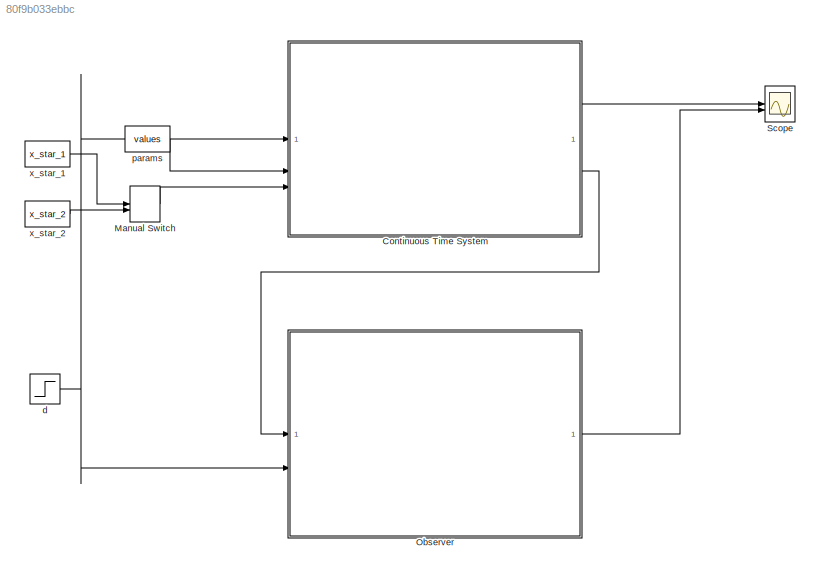
MODEL slx_80f9b033ebbc
KIND model
CONFIG AbsTol = auto
CONFIG EnableMultiTasking = off
CONFIG FixedStep = auto
CONFIG MaxStep = auto
CONFIG MinStep = auto
CONFIG RelTol = 1e-3
CONFIG SampleTimeConstraint = Unconstrained
CONFIG SolverName = VariableStepAuto
CONFIG StartTime = 0.0
CONFIG StopTime = 10.0
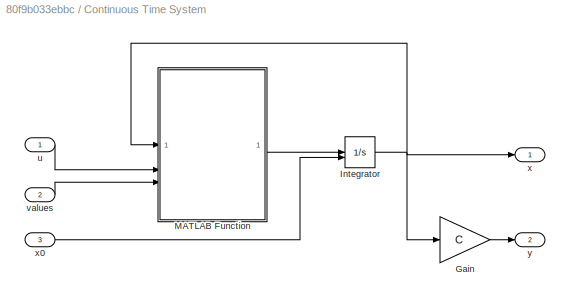
BLOCK [SubSystem] Continuous Time System
BLOCK [Gain] Continuous Time System/Gain
  Gain = C
  Multiplication = Matrix(K*u) (u vector)
BLOCK [Integrator] Continuous Time System/Integrator
  InitialConditionSource = external
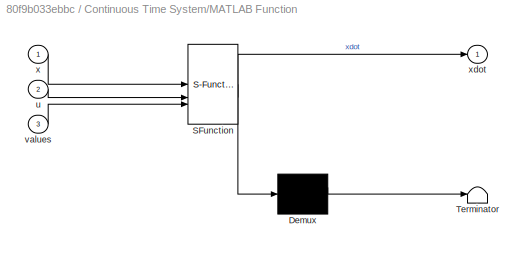
BLOCK [SubSystem] Continuous Time System/MATLAB Function
  ErrorFcn = Stateflow.Translate.translate
  PermitHierarchicalResolution = ExplicitOnly
  SFBlockType = MATLAB Function
  TreatAsAtomicUnit = on
BLOCK [Demux] Continuous Time System/MATLAB Function/ Demux 
  Outputs = 1
BLOCK [S-Function] Continuous Time System/MATLAB Function/ SFunction 
  EnableBusSupport = on
  FunctionName = sf_sfun
  PortCounts = [3 2]
  SFcnIsStateOwnerBlock = off
  SFunctionDeploymentMode = off
  Tag = Stateflow S-Function 2
BLOCK [Terminator] Continuous Time System/MATLAB Function/ Terminator 
BLOCK [Inport] Continuous Time System/MATLAB Function/u
  Port = 2
BLOCK [Inport] Continuous Time System/MATLAB Function/values
  Port = 3
BLOCK [Inport] Continuous Time System/MATLAB Function/x
BLOCK [Outport] Continuous Time System/MATLAB Function/xdot
BLOCK [Inport] Continuous Time System/u
BLOCK [Inport] Continuous Time System/values
  Port = 2
BLOCK [Outport] Continuous Time System/x
BLOCK [Inport] Continuous Time System/x0
  Port = 3
BLOCK [Outport] Continuous Time System/y
  Port = 2
BLOCK [ManualSwitch] Manual Switch
  CurrentSetting = 0
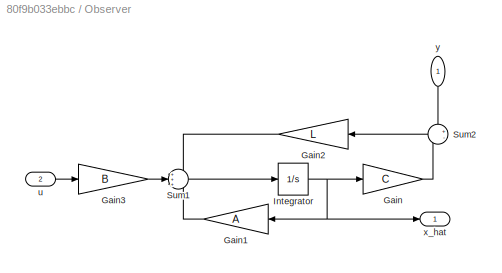
BLOCK [SubSystem] Observer
BLOCK [Gain] Observer/Gain
  Gain = C
  Multiplication = Matrix(K*u) (u vector)
BLOCK [Gain] Observer/Gain1
  Gain = A
  Multiplication = Matrix(K*u) (u vector)
BLOCK [Gain] Observer/Gain2
  Gain = L
  Multiplication = Matrix(K*u) (u vector)
BLOCK [Gain] Observer/Gain3
  Gain = B
  Multiplication = Matrix(K*u) (u vector)
BLOCK [Integrator] Observer/Integrator
  InitialCondition = [2, -20]
BLOCK [Sum] Observer/Sum1
  Inputs = +++
BLOCK [Sum] Observer/Sum2
  Inputs = +-
BLOCK [Inport] Observer/u
  Port = 2
BLOCK [Outport] Observer/x_hat
BLOCK [Inport] Observer/y
  NameLocation = left
BLOCK [Scope] Scope
  Floating = off
  NumInputPorts = 2
  ScopeSpecificationString = Simulink.scopes.TimeScopeBlockCfg('CurrentConfiguration', extmgr.ConfigurationSet(extmgr.Configuration('Core','General UI',true),extmgr.Configuration('Core','Source UI',true),extmgr.Configuration('Sources','WiredSimulink',true,'DataLoggingVariableName','ScopeData1'),extmgr.Configuration('Visuals','Time Domain',true,'SerializedDisplays',{struct('MinYLimReal','-5.01905','MaxYLimReal','11.17759','YLa...<+1644ch>
BLOCK [Step] d
  After = 0
  SampleTime = 0
  Time = 2
BLOCK [Constant] params
  Value = values
BLOCK [Constant] x_star_1
  Value = x_star_1
BLOCK [Constant] x_star_2
  Value = x_star_2
LINE Continuous Time System/Gain:1 -> Continuous Time System/y:1
NET Continuous Time System/Integrator:1 -> Continuous Time System/Gain:1, Continuous Time System/MATLAB Function:1, Continuous Time System/x:1
LINE Continuous Time System/MATLAB Function:1 -> Continuous Time System/Integrator:1
LINE Continuous Time System/u:1 -> Continuous Time System/MATLAB Function:2
LINE Continuous Time System/values:1 -> Continuous Time System/MATLAB Function:3
LINE Continuous Time System/x0:1 -> Continuous Time System/Integrator:2
LINE Continuous Time System:1 -> Scope:1
LINE Continuous Time System:2 -> Observer:1
LINE Manual Switch:1 -> Continuous Time System:3
LINE Observer/Gain1:1 -> Observer/Sum1:3
LINE Observer/Gain2:1 -> Observer/Sum1:1
LINE Observer/Gain3:1 -> Observer/Sum1:2
LINE Observer/Gain:1 -> Observer/Sum2:2
NET Observer/Integrator:1 -> Observer/Gain1:1, Observer/Gain:1, Observer/x_hat:1
LINE Observer/Sum1:1 -> Observer/Integrator:1
LINE Observer/Sum2:1 -> Observer/Gain2:1
LINE Observer/u:1 -> Observer/Gain3:1
LINE Observer/y:1 -> Observer/Sum2:1
LINE Observer:1 -> Scope:2
NET d:1 -> Continuous Time System:1, Observer:2
LINE params:1 -> Continuous Time System:2
LINE x_star_1:1 -> Manual Switch:1
LINE x_star_2:1 -> Manual Switch:2
note: NET lines group one-source signal fan-out (src -> all destinations, sorted); 1:1 wires keep LINE
CHART Continuous Time System/MATLAB Function states=1 transitions=1
  STATE_LABEL 'eML_blk_kernel()'
  STATE_LABEL 'SCRIPT:\nfunction xdot = fcn(x, u, values)\n\nJ = values(2);\nL = values(3);\nKd = values(4);\nKe = values(5);\nKm = values(6);\nRm = values(7);\n\nxdot = [-Rm/L * x(1) - Ke/L * x(2) + 1/L * u;\n         Km/J * x(1) - Kd/J * x(2)];'
CHART  states=0 transitions=0
